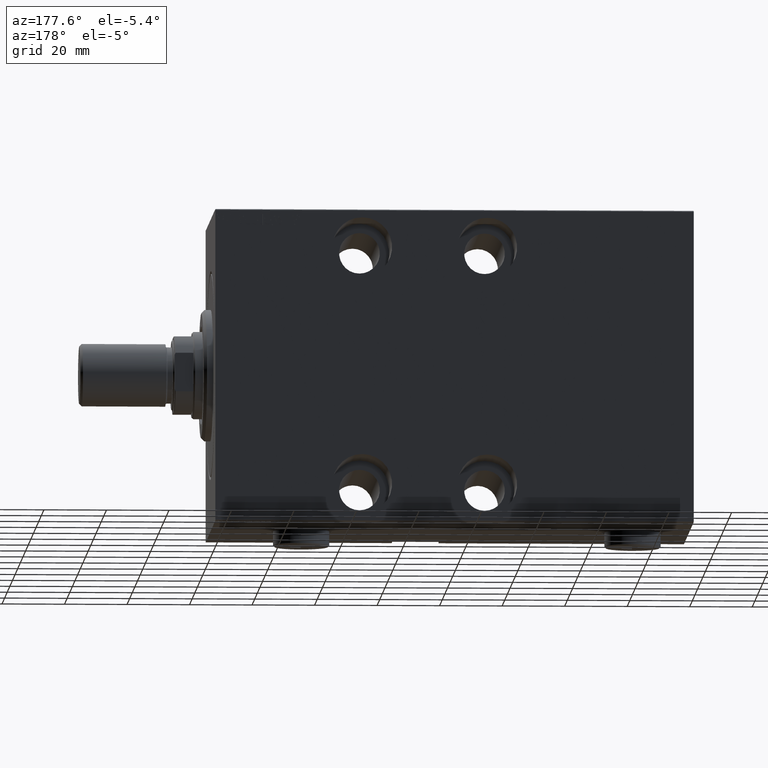
[diagram: clean part render]
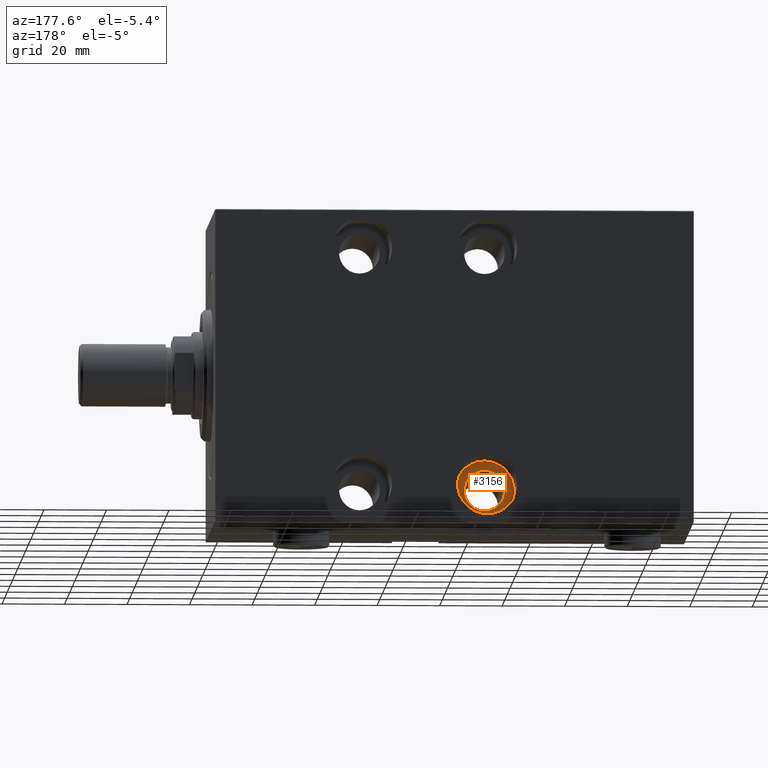
[diagram: same view with one face highlighted and labeled with its STEP entity id]
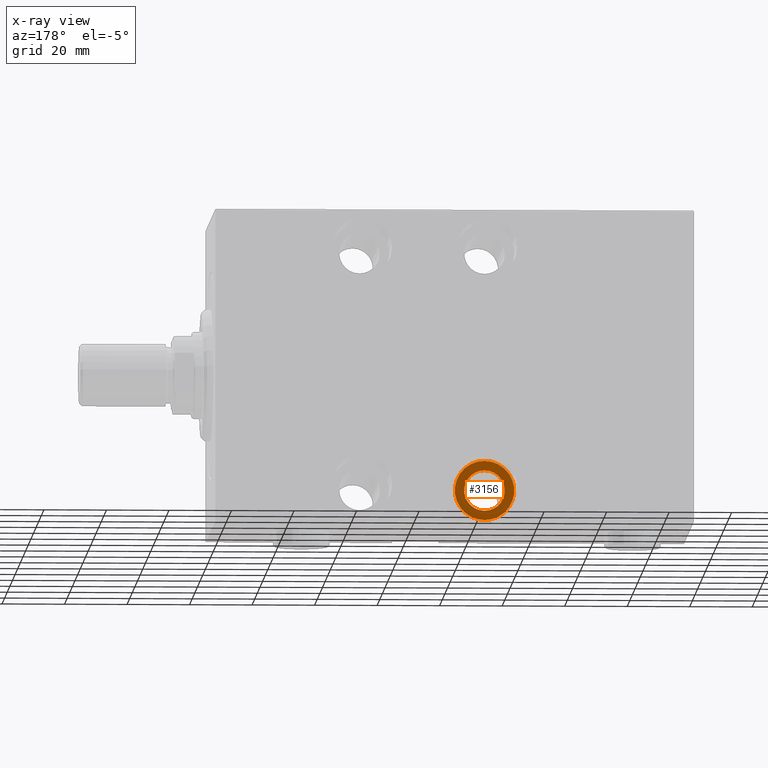
[diagram: x-ray of the same camera — body ghosted, the highlighted face saturated]
A machine part, auxiliary view. The second image highlights one B-rep face of the part: STEP entity #3156.
The next image is the same camera in x-ray: the body ghosted, the highlighted face saturated — about 0% of this face is hidden behind the body in this view.
In plain terms, the highlighted planar face has unit normal (-0, 1, 0).
Its self-contained STEP definition (entity closure, byte-faithful):
#720 = DIRECTION ( 'NONE',  ( 0.000000000000000000, 0.000000000000000000, -1.000000000000000000 ) ) ;
#2781 = EDGE_CURVE ( 'NONE', #34981, #17746, #32746, .T. ) ;
#3156 = ADVANCED_FACE ( 'NONE', ( #6621, #24053 ), #6400, .T. ) ;
#3601 = CARTESIAN_POINT ( 'NONE',  ( 87.00000000000000000, -15.49999999999999289, -47.49999999999998579 ) ) ;
#6398 = CARTESIAN_POINT ( 'NONE',  ( 87.00000000000000000, -15.49999999999999289, -28.49999999999999645 ) ) ;
#6400 = PLANE ( 'NONE',  #40651 ) ;
#6621 = FACE_OUTER_BOUND ( 'NONE', #37761, .T. ) ;
#7387 = CIRCLE ( 'NONE', #22376, 6.500000000000005329 ) ;
#7565 = CIRCLE ( 'NONE', #12560, 6.500000000000005329 ) ;
#8409 = ORIENTED_EDGE ( 'NONE', *, *, #2781, .T. ) ;
#11223 = VERTEX_POINT ( 'NONE', #23933 ) ;
#12560 = AXIS2_PLACEMENT_3D ( 'NONE', #32265, #21539, #18177 ) ;
#14706 = AXIS2_PLACEMENT_3D ( 'NONE', #26621, #44067, #30185 ) ;
#17746 = VERTEX_POINT ( 'NONE', #6398 ) ;
#18177 = DIRECTION ( 'NONE',  ( 0.000000000000000000, 0.000000000000000000, -1.000000000000000000 ) ) ;
#19888 = AXIS2_PLACEMENT_3D ( 'NONE', #33296, #22174, #29716 ) ;
#20040 = CARTESIAN_POINT ( 'NONE',  ( 87.00000000000000000, -15.49999999999999289, -37.99999999999999289 ) ) ;
#21539 = DIRECTION ( 'NONE',  ( -0.000000000000000000, 1.000000000000000000, -0.000000000000000000 ) ) ;
#22174 = DIRECTION ( 'NONE',  ( 0.000000000000000000, -1.000000000000000000, 0.000000000000000000 ) ) ;
#22376 = AXIS2_PLACEMENT_3D ( 'NONE', #24644, #34281, #720 ) ;
#23103 = CARTESIAN_POINT ( 'NONE',  ( 87.00000000000000000, -15.49999999999999289, -44.50000000000000000 ) ) ;
#23933 = CARTESIAN_POINT ( 'NONE',  ( 87.00000000000000000, -15.49999999999999289, -31.49999999999998579 ) ) ;
#24053 = FACE_BOUND ( 'NONE', #34332, .T. ) ;
#24644 = CARTESIAN_POINT ( 'NONE',  ( 87.00000000000000000, -15.49999999999999289, -37.99999999999999289 ) ) ;
#26621 = CARTESIAN_POINT ( 'NONE',  ( 87.00000000000000000, -15.49999999999999289, -37.99999999999999289 ) ) ;
#27625 = ORIENTED_EDGE ( 'NONE', *, *, #32111, .T. ) ;
#29716 = DIRECTION ( 'NONE',  ( 0.000000000000000000, 0.000000000000000000, -1.000000000000000000 ) ) ;
#30185 = DIRECTION ( 'NONE',  ( 0.000000000000000000, 0.000000000000000000, -1.000000000000000000 ) ) ;
#32111 = EDGE_CURVE ( 'NONE', #11223, #35822, #7387, .T. ) ;
#32265 = CARTESIAN_POINT ( 'NONE',  ( 87.00000000000000000, -15.49999999999999289, -37.99999999999999289 ) ) ;
#32746 = CIRCLE ( 'NONE', #19888, 9.499999999999994671 ) ;
#33296 = CARTESIAN_POINT ( 'NONE',  ( 87.00000000000000000, -15.49999999999999289, -37.99999999999999289 ) ) ;
#33686 = DIRECTION ( 'NONE',  ( 0.000000000000000000, -1.000000000000000000, 0.000000000000000000 ) ) ;
#34281 = DIRECTION ( 'NONE',  ( -0.000000000000000000, 1.000000000000000000, -0.000000000000000000 ) ) ;
#34332 = EDGE_LOOP ( 'NONE', ( #27625, #37115 ) ) ;
#34981 = VERTEX_POINT ( 'NONE', #3601 ) ;
#35822 = VERTEX_POINT ( 'NONE', #23103 ) ;
#36901 = CIRCLE ( 'NONE', #14706, 9.499999999999994671 ) ;
#37048 = DIRECTION ( 'NONE',  ( 0.000000000000000000, -0.000000000000000000, -1.000000000000000000 ) ) ;
#37115 = ORIENTED_EDGE ( 'NONE', *, *, #38949, .T. ) ;
#37761 = EDGE_LOOP ( 'NONE', ( #8409, #40633 ) ) ;
#38949 = EDGE_CURVE ( 'NONE', #35822, #11223, #7565, .T. ) ;
#40633 = ORIENTED_EDGE ( 'NONE', *, *, #44005, .T. ) ;
#40651 = AXIS2_PLACEMENT_3D ( 'NONE', #20040, #33686, #37048 ) ;
#44005 = EDGE_CURVE ( 'NONE', #17746, #34981, #36901, .T. ) ;
#44067 = DIRECTION ( 'NONE',  ( 0.000000000000000000, -1.000000000000000000, 0.000000000000000000 ) ) ;